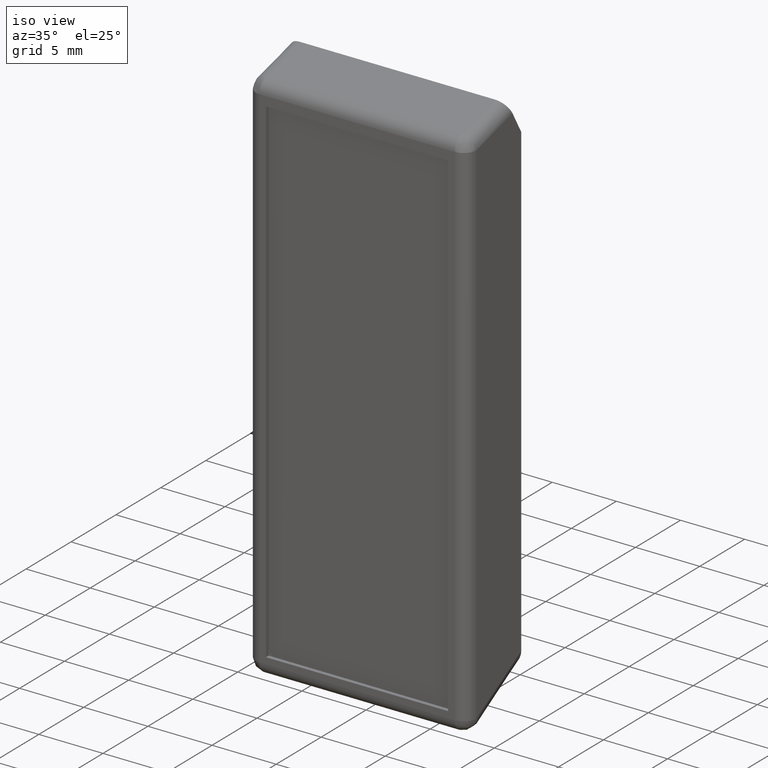
[diagram: clean part render]
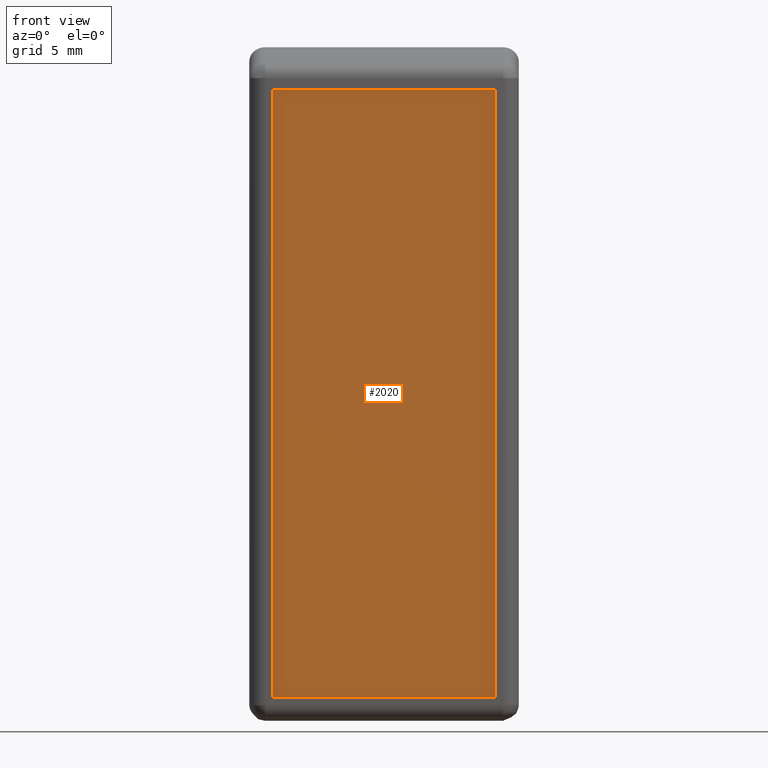
[diagram: tour spotlight — one face highlighted and labeled with its STEP entity id]
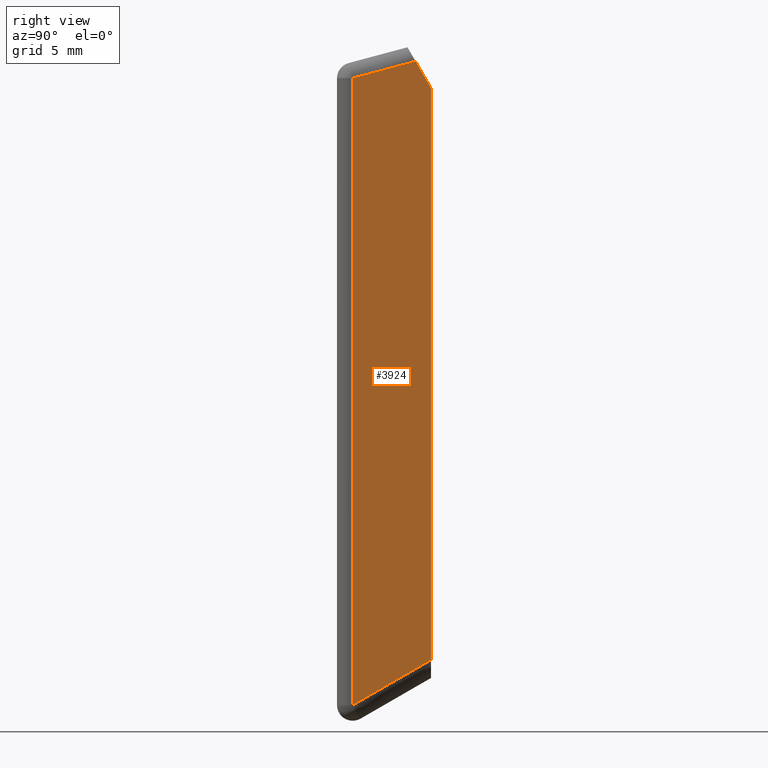
[diagram: tour spotlight — one face highlighted and labeled with its STEP entity id]
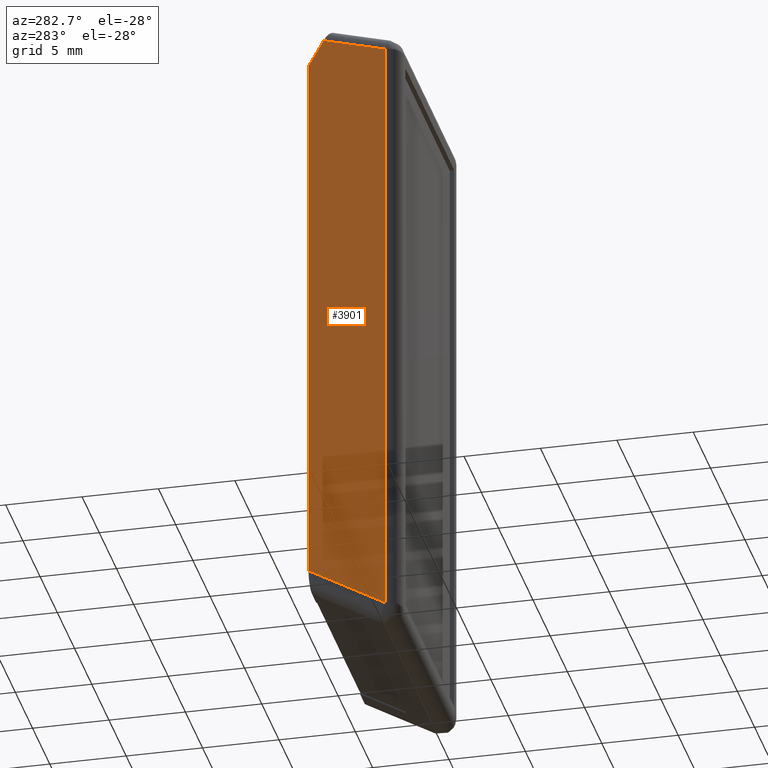
[diagram: tour spotlight — one face highlighted and labeled with its STEP entity id]
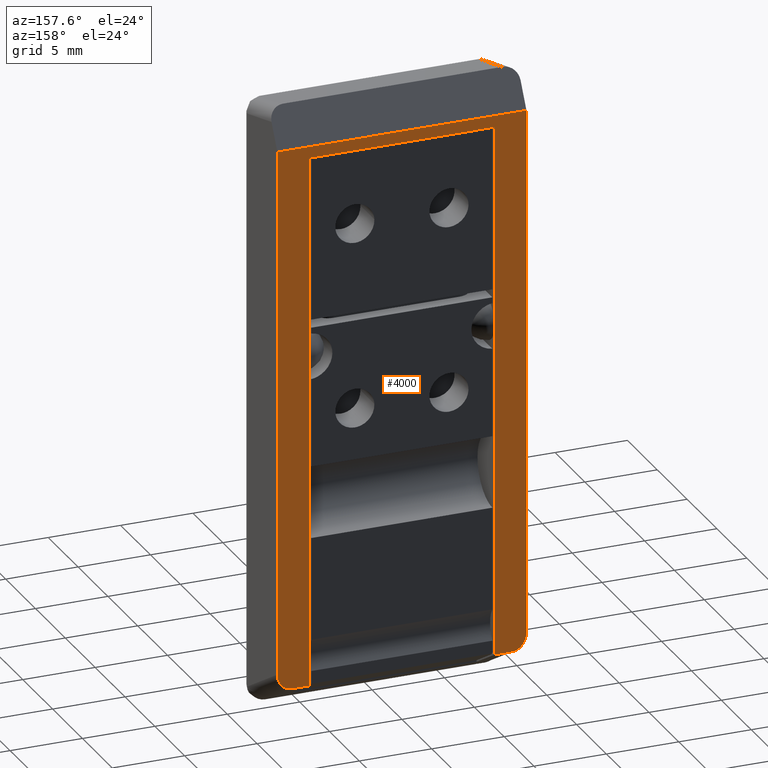
[diagram: tour spotlight — one face highlighted and labeled with its STEP entity id]
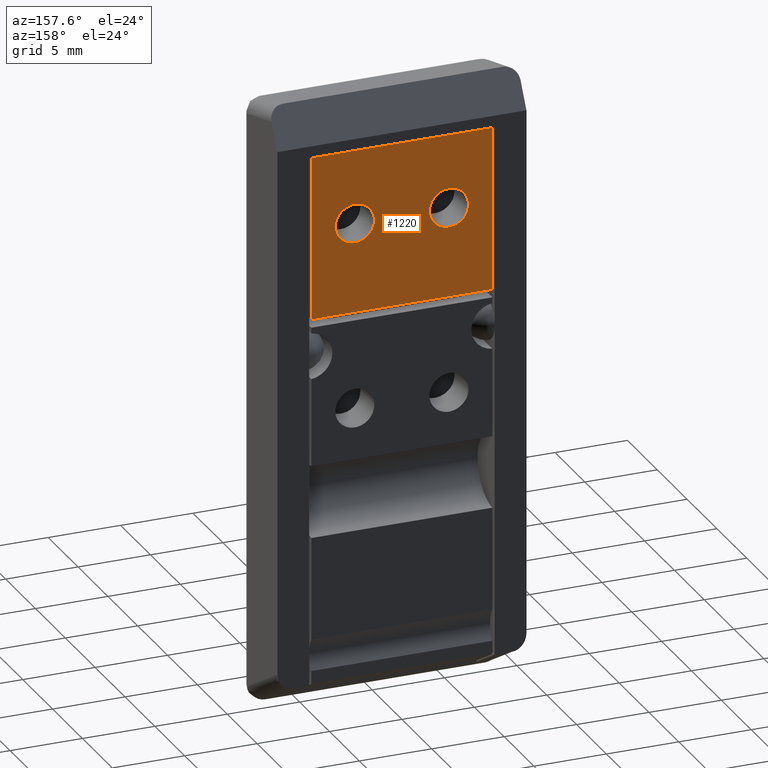
[diagram: tour spotlight — one face highlighted and labeled with its STEP entity id]
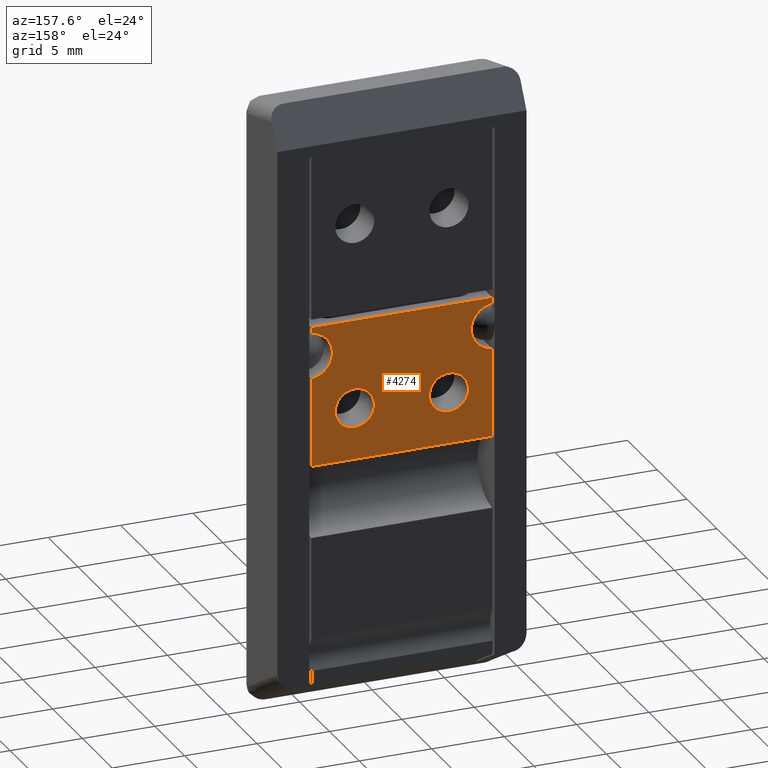
[diagram: tour spotlight — one face highlighted and labeled with its STEP entity id]
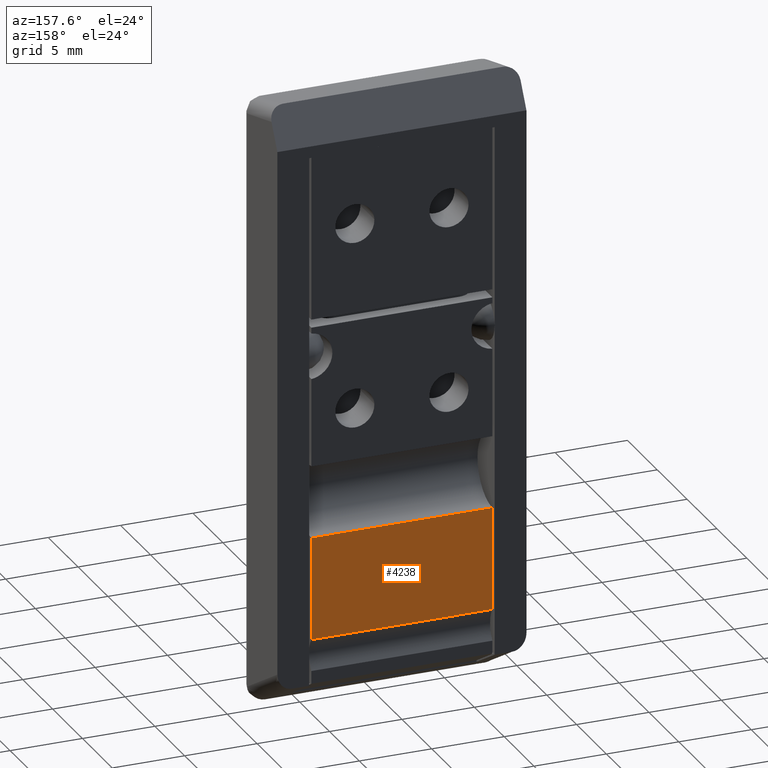
[diagram: tour spotlight — one face highlighted and labeled with its STEP entity id]
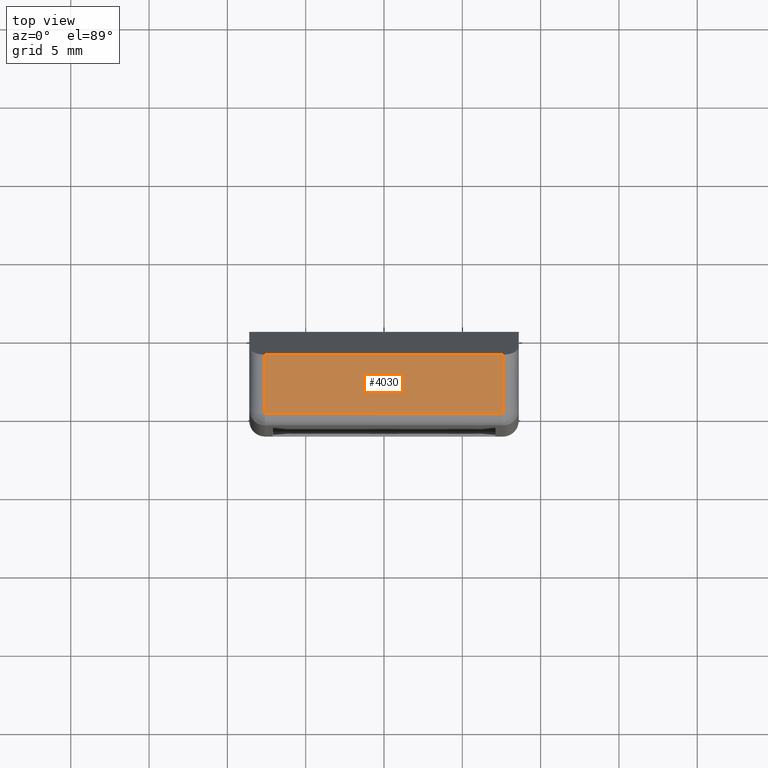
[diagram: tour spotlight — one face highlighted and labeled with its STEP entity id]
A machine part: a face-by-face anatomy tour. The part has 92 B-rep faces; the first image is the clean iso view, then the 8 largest visible faces are spotlighted one at a time (largest first), each with its STEP entity span.

Face 1 — front view, entity #2020. In plain terms, the highlighted face is a freeform B-spline surface patch.
Definition (entity closure, byte-faithful):
#1985=CARTESIAN_POINT('',(-7.809289972477646,-5.700000000000000,42.231759132298762));
#1986=CARTESIAN_POINT('',(7.809290353351326,-5.700000000000000,42.231759132298762));
#1987=CARTESIAN_POINT('',(-7.809289972477646,-5.700000000000000,-0.437761213370985));
#1988=CARTESIAN_POINT('',(7.809290353351326,-5.700000000000000,-0.437761213370985));
#1989=B_SPLINE_SURFACE_WITH_KNOTS('',1,1,((#1985,#1987),(#1986,#1988)),.UNSPECIFIED.,.F.,.F.,.U.,(2,2),(2,2),(0.0,15.618580325828971),(0.0,42.669520345669753),.UNSPECIFIED.);
#1990=CARTESIAN_POINT('',(-7.100000000000001,-5.700000000000000,1.500000000000100));
#1991=VERTEX_POINT('',#1990);
#1992=CARTESIAN_POINT('',(-7.100000000000001,-5.700000000000000,40.293999999999997));
#1993=VERTEX_POINT('',#1992);
#1994=CARTESIAN_POINT('',(-7.100000000000001,-5.700000000000000,1.500000000000100));
#1995=CARTESIAN_POINT('',(-7.100000000000001,-5.700000000000000,40.293999999999997));
#1996=QUASI_UNIFORM_CURVE('',1,(#1994,#1995),.UNSPECIFIED.,.F.,.U.);
#1997=EDGE_CURVE('',#1991,#1993,#1996,.T.);
#1998=ORIENTED_EDGE('',*,*,#1997,.F.);
#1999=CARTESIAN_POINT('',(7.100000000000001,-5.700000000000000,1.500000000000100));
#2000=VERTEX_POINT('',#1999);
#2001=CARTESIAN_POINT('',(7.100000000000001,-5.700000000000000,1.500000000000100));
#2002=CARTESIAN_POINT('',(-7.100000000000001,-5.700000000000000,1.500000000000100));
#2003=QUASI_UNIFORM_CURVE('',1,(#2001,#2002),.UNSPECIFIED.,.F.,.U.);
#2004=EDGE_CURVE('',#2000,#1991,#2003,.T.);
#2005=ORIENTED_EDGE('',*,*,#2004,.F.);
#2006=CARTESIAN_POINT('',(7.100000000000001,-5.700000000000000,40.293999999999997));
#2007=VERTEX_POINT('',#2006);
#2008=CARTESIAN_POINT('',(7.100000000000001,-5.700000000000000,40.293999999999997));
#2009=CARTESIAN_POINT('',(7.100000000000001,-5.700000000000000,1.500000000000100));
#2010=QUASI_UNIFORM_CURVE('',1,(#2008,#2009),.UNSPECIFIED.,.F.,.U.);
#2011=EDGE_CURVE('',#2007,#2000,#2010,.T.);
#2012=ORIENTED_EDGE('',*,*,#2011,.F.);
#2013=CARTESIAN_POINT('',(-7.100000000000001,-5.700000000000000,40.293999999999997));
#2014=CARTESIAN_POINT('',(7.100000000000001,-5.700000000000000,40.293999999999997));
#2015=QUASI_UNIFORM_CURVE('',1,(#2013,#2014),.UNSPECIFIED.,.F.,.U.);
#2016=EDGE_CURVE('',#1993,#2007,#2015,.T.);
#2017=ORIENTED_EDGE('',*,*,#2016,.F.);
#2018=EDGE_LOOP('',(#1998,#2005,#2012,#2017));
#2019=FACE_OUTER_BOUND('',#2018,.T.);
#2020=ADVANCED_FACE('',(#2019),#1989,.F.);

Face 2 — right view, entity #3924. In plain terms, the highlighted face is a freeform B-spline surface patch.
Definition (entity closure, byte-faithful):
#3526=CARTESIAN_POINT('',(8.600000000000000,-5.0,1.000025403877686));
#3527=VERTEX_POINT('',#3526);
#3628=CARTESIAN_POINT('',(8.600000000000000,0.0,3.886692070544245));
#3629=VERTEX_POINT('',#3628);
#3645=CARTESIAN_POINT('',(8.600000000000000,-5.0,1.000025403877686));
#3646=CARTESIAN_POINT('',(8.600000000000000,0.0,3.886692070544245));
#3647=QUASI_UNIFORM_CURVE('',1,(#3645,#3646),.UNSPECIFIED.,.F.,.U.);
#3648=EDGE_CURVE('',#3527,#3629,#3647,.T.);
#3673=CARTESIAN_POINT('',(8.600000000000000,-5.0,41.026854700937548));
#3674=VERTEX_POINT('',#3673);
#3696=CARTESIAN_POINT('',(8.600000000000000,-5.0,41.026854700937548));
#3697=CARTESIAN_POINT('',(8.600000000000000,-5.0,1.000025403877686));
#3698=QUASI_UNIFORM_CURVE('',1,(#3696,#3697),.UNSPECIFIED.,.F.,.U.);
#3699=EDGE_CURVE('',#3674,#3527,#3698,.T.);
#3849=CARTESIAN_POINT('',(8.600000000000000,-0.982350375808582,42.103430850900502));
#3850=VERTEX_POINT('',#3849);
#3851=CARTESIAN_POINT('',(8.600000000000000,-0.982350375808582,42.103430850900502));
#3852=CARTESIAN_POINT('',(8.600000000000000,-5.0,41.026854700937548));
#3853=QUASI_UNIFORM_CURVE('',1,(#3851,#3852),.UNSPECIFIED.,.F.,.U.);
#3854=EDGE_CURVE('',#3850,#3674,#3853,.T.);
#3902=CARTESIAN_POINT('',(8.600000000000000,-5.249749990309030,44.156547030860999));
#3903=CARTESIAN_POINT('',(8.600000000000000,0.249750124419480,44.156547030860999));
#3904=CARTESIAN_POINT('',(8.600000000000000,-5.249749990309030,-1.053090776082814));
#3905=CARTESIAN_POINT('',(8.600000000000000,0.249750124419480,-1.053090776082814));
#3906=B_SPLINE_SURFACE_WITH_KNOTS('',1,1,((#3902,#3904),(#3903,#3905)),.UNSPECIFIED.,.F.,.F.,.U.,(2,2),(2,2),(0.0,5.499500114728510),(0.0,45.209637806943810),.UNSPECIFIED.);
#3907=ORIENTED_EDGE('',*,*,#3699,.T.);
#3908=ORIENTED_EDGE('',*,*,#3648,.T.);
#3909=CARTESIAN_POINT('',(8.600000000000000,0.0,40.402000000000001));
#3910=VERTEX_POINT('',#3909);
#3911=CARTESIAN_POINT('',(8.600000000000000,0.0,40.402000000000001));
#3912=CARTESIAN_POINT('',(8.600000000000000,0.0,3.886692070544245));
#3913=QUASI_UNIFORM_CURVE('',1,(#3911,#3912),.UNSPECIFIED.,.F.,.U.);
#3914=EDGE_CURVE('',#3910,#3629,#3913,.T.);
#3915=ORIENTED_EDGE('',*,*,#3914,.F.);
#3916=CARTESIAN_POINT('',(8.600000000000000,-0.982350375808582,42.103430850900502));
#3917=CARTESIAN_POINT('',(8.600000000000000,0.0,40.402000000000001));
#3918=QUASI_UNIFORM_CURVE('',1,(#3916,#3917),.UNSPECIFIED.,.F.,.U.);
#3919=EDGE_CURVE('',#3850,#3910,#3918,.T.);
#3920=ORIENTED_EDGE('',*,*,#3919,.F.);
#3921=ORIENTED_EDGE('',*,*,#3854,.T.);
#3922=EDGE_LOOP('',(#3907,#3908,#3915,#3920,#3921));
#3923=FACE_OUTER_BOUND('',#3922,.T.);
#3924=ADVANCED_FACE('',(#3923),#3906,.F.);

Face 3 — auxiliary view, entity #3901. In plain terms, the highlighted face is a freeform B-spline surface patch.
Definition (entity closure, byte-faithful):
#3307=CARTESIAN_POINT('',(-8.600000000000000,0.0,3.886692070544245));
#3308=VERTEX_POINT('',#3307);
#3329=CARTESIAN_POINT('',(-8.600000000000000,-5.0,1.000025403877686));
#3330=VERTEX_POINT('',#3329);
#3344=CARTESIAN_POINT('',(-8.600000000000000,0.0,3.886692070544245));
#3345=CARTESIAN_POINT('',(-8.600000000000000,-5.0,1.000025403877686));
#3346=QUASI_UNIFORM_CURVE('',1,(#3344,#3345),.UNSPECIFIED.,.F.,.U.);
#3347=EDGE_CURVE('',#3308,#3330,#3346,.T.);
#3473=CARTESIAN_POINT('',(-8.600000000000000,-5.0,41.026854700937548));
#3474=VERTEX_POINT('',#3473);
#3488=CARTESIAN_POINT('',(-8.600000000000000,-5.0,1.000025403877686));
#3489=CARTESIAN_POINT('',(-8.600000000000000,-5.0,41.026854700937548));
#3490=QUASI_UNIFORM_CURVE('',1,(#3488,#3489),.UNSPECIFIED.,.F.,.U.);
#3491=EDGE_CURVE('',#3330,#3474,#3490,.T.);
#3761=CARTESIAN_POINT('',(-8.600000000000000,-0.982350375808586,42.103430850900502));
#3762=VERTEX_POINT('',#3761);
#3778=CARTESIAN_POINT('',(-8.600000000000000,-5.0,41.026854700937548));
#3779=CARTESIAN_POINT('',(-8.600000000000000,-0.982350375808586,42.103430850900502));
#3780=QUASI_UNIFORM_CURVE('',1,(#3778,#3779),.UNSPECIFIED.,.F.,.U.);
#3781=EDGE_CURVE('',#3474,#3762,#3780,.T.);
#3879=CARTESIAN_POINT('',(-8.600000000000000,-5.249749990309030,44.156547030860999));
#3880=CARTESIAN_POINT('',(-8.600000000000000,0.249750124419480,44.156547030860999));
#3881=CARTESIAN_POINT('',(-8.600000000000000,-5.249749990309030,-1.053090776082814));
#3882=CARTESIAN_POINT('',(-8.600000000000000,0.249750124419480,-1.053090776082814));
#3883=B_SPLINE_SURFACE_WITH_KNOTS('',1,1,((#3879,#3881),(#3880,#3882)),.UNSPECIFIED.,.F.,.F.,.U.,(2,2),(2,2),(0.0,5.499500114728510),(0.0,45.209637806943810),.UNSPECIFIED.);
#3884=CARTESIAN_POINT('',(-8.600000000000000,0.0,40.402000000000001));
#3885=VERTEX_POINT('',#3884);
#3886=CARTESIAN_POINT('',(-8.600000000000000,0.0,40.402000000000001));
#3887=CARTESIAN_POINT('',(-8.600000000000000,0.0,3.886692070544245));
#3888=QUASI_UNIFORM_CURVE('',1,(#3886,#3887),.UNSPECIFIED.,.F.,.U.);
#3889=EDGE_CURVE('',#3885,#3308,#3888,.T.);
#3890=ORIENTED_EDGE('',*,*,#3889,.T.);
#3891=ORIENTED_EDGE('',*,*,#3347,.T.);
#3892=ORIENTED_EDGE('',*,*,#3491,.T.);
#3893=ORIENTED_EDGE('',*,*,#3781,.T.);
#3894=CARTESIAN_POINT('',(-8.600000000000000,-0.982350375808586,42.103430850900502));
#3895=CARTESIAN_POINT('',(-8.600000000000000,0.0,40.402000000000001));
#3896=QUASI_UNIFORM_CURVE('',1,(#3894,#3895),.UNSPECIFIED.,.F.,.U.);
#3897=EDGE_CURVE('',#3762,#3885,#3896,.T.);
#3898=ORIENTED_EDGE('',*,*,#3897,.T.);
#3899=EDGE_LOOP('',(#3890,#3891,#3892,#3893,#3898));
#3900=FACE_OUTER_BOUND('',#3899,.T.);
#3901=ADVANCED_FACE('',(#3900),#3883,.T.);

Face 4 — auxiliary view, entity #4000. In plain terms, the highlighted face is a freeform B-spline surface patch.
Definition (entity closure, byte-faithful):
#2711=CARTESIAN_POINT('',(6.400000000000000,-1.136868E-013,25.731999999999999));
#2712=VERTEX_POINT('',#2711);
#2793=CARTESIAN_POINT('',(-6.400000000000000,-1.136868E-013,25.731999999999999));
#2794=VERTEX_POINT('',#2793);
#3189=CARTESIAN_POINT('',(-6.400000000000000,-1.136868E-013,39.600000000000001));
#3190=VERTEX_POINT('',#3189);
#3196=CARTESIAN_POINT('',(6.400000000000000,-1.136868E-013,39.600000000000001));
#3197=VERTEX_POINT('',#3196);
#3198=CARTESIAN_POINT('',(6.400000000000000,-1.136868E-013,39.600000000000001));
#3199=CARTESIAN_POINT('',(-6.400000000000000,-1.136868E-013,39.600000000000001));
#3200=QUASI_UNIFORM_CURVE('',1,(#3198,#3199),.UNSPECIFIED.,.F.,.U.);
#3201=EDGE_CURVE('',#3197,#3190,#3200,.T.);
#3305=CARTESIAN_POINT('',(-7.600000000000000,0.0,2.732000000000000));
#3306=VERTEX_POINT('',#3305);
#3307=CARTESIAN_POINT('',(-8.600000000000000,0.0,3.886692070544245));
#3308=VERTEX_POINT('',#3307);
#3309=CARTESIAN_POINT('',(-7.600000000000000,0.0,2.732000000000001));
#3310=CARTESIAN_POINT('',(-8.600000000000000,0.0,2.732000000000001));
#3311=CARTESIAN_POINT('',(-8.600000000000000,0.0,3.886692070544245));
#3319=(BOUNDED_CURVE()B_SPLINE_CURVE(2,(#3309,#3310,#3311),.UNSPECIFIED.,.F.,.U.)CURVE()GEOMETRIC_REPRESENTATION_ITEM()QUASI_UNIFORM_CURVE()RATIONAL_B_SPLINE_CURVE((1.0,0.707106781186547,1.0))REPRESENTATION_ITEM(''));
#3320=EDGE_CURVE('',#3306,#3308,#3319,.T.);
#3628=CARTESIAN_POINT('',(8.600000000000000,0.0,3.886692070544245));
#3629=VERTEX_POINT('',#3628);
#3630=CARTESIAN_POINT('',(7.600000000000000,0.0,2.732000000000000));
#3631=VERTEX_POINT('',#3630);
#3632=CARTESIAN_POINT('',(8.600000000000000,0.0,3.886692070544245));
#3633=CARTESIAN_POINT('',(8.600000000000000,0.0,2.732000000000001));
#3634=CARTESIAN_POINT('',(7.600000000000000,0.0,2.732000000000001));
#3642=(BOUNDED_CURVE()B_SPLINE_CURVE(2,(#3632,#3633,#3634),.UNSPECIFIED.,.F.,.U.)CURVE()GEOMETRIC_REPRESENTATION_ITEM()QUASI_UNIFORM_CURVE()RATIONAL_B_SPLINE_CURVE((1.0,0.707106781186547,1.0))REPRESENTATION_ITEM(''));
#3643=EDGE_CURVE('',#3629,#3631,#3642,.T.);
#3884=CARTESIAN_POINT('',(-8.600000000000000,0.0,40.402000000000001));
#3885=VERTEX_POINT('',#3884);
#3886=CARTESIAN_POINT('',(-8.600000000000000,0.0,40.402000000000001));
#3887=CARTESIAN_POINT('',(-8.600000000000000,0.0,3.886692070544245));
#3888=QUASI_UNIFORM_CURVE('',1,(#3886,#3887),.UNSPECIFIED.,.F.,.U.);
#3889=EDGE_CURVE('',#3885,#3308,#3888,.T.);
#3909=CARTESIAN_POINT('',(8.600000000000000,0.0,40.402000000000001));
#3910=VERTEX_POINT('',#3909);
#3911=CARTESIAN_POINT('',(8.600000000000000,0.0,40.402000000000001));
#3912=CARTESIAN_POINT('',(8.600000000000000,0.0,3.886692070544245));
#3913=QUASI_UNIFORM_CURVE('',1,(#3911,#3912),.UNSPECIFIED.,.F.,.U.);
#3914=EDGE_CURVE('',#3910,#3629,#3913,.T.);
#3930=CARTESIAN_POINT('',(6.400000000000000,0.0,2.732000000000000));
#3931=VERTEX_POINT('',#3930);
#3937=CARTESIAN_POINT('',(7.600000000000000,0.0,2.732000000000000));
#3938=CARTESIAN_POINT('',(6.400000000000000,0.0,2.732000000000000));
#3939=QUASI_UNIFORM_CURVE('',1,(#3937,#3938),.UNSPECIFIED.,.F.,.U.);
#3940=EDGE_CURVE('',#3631,#3931,#3939,.T.);
#3945=CARTESIAN_POINT('',(-6.400000000000000,0.0,2.732000000000000));
#3946=VERTEX_POINT('',#3945);
#3947=CARTESIAN_POINT('',(-6.400000000000000,0.0,2.732000000000000));
#3948=CARTESIAN_POINT('',(-7.600000000000000,0.0,2.732000000000000));
#3949=QUASI_UNIFORM_CURVE('',1,(#3947,#3948),.UNSPECIFIED.,.F.,.U.);
#3950=EDGE_CURVE('',#3946,#3306,#3949,.T.);
#3961=CARTESIAN_POINT('',(-9.459140451046945,0.0,0.850383573011769));
#3962=CARTESIAN_POINT('',(-9.459140451046945,0.0,42.283617437376357));
#3963=CARTESIAN_POINT('',(9.459140451046942,0.0,0.850383573011769));
#3964=CARTESIAN_POINT('',(9.459140451046942,0.0,42.283617437376357));
#3965=B_SPLINE_SURFACE_WITH_KNOTS('',1,1,((#3961,#3963),(#3962,#3964)),.UNSPECIFIED.,.F.,.F.,.U.,(2,2),(2,2),(0.0,41.433233864364588),(0.0,18.918280902093890),.UNSPECIFIED.);
#3966=CARTESIAN_POINT('',(-6.400000000000000,-1.136868E-013,39.600000000000001));
#3967=CARTESIAN_POINT('',(-6.400000000000000,-1.136868E-013,25.731999999999999));
#3968=QUASI_UNIFORM_CURVE('',1,(#3966,#3967),.UNSPECIFIED.,.F.,.U.);
#3969=EDGE_CURVE('',#3190,#2794,#3968,.T.);
#3970=ORIENTED_EDGE('',*,*,#3969,.T.);
#3971=CARTESIAN_POINT('',(-6.400000000000000,-1.136868E-013,25.731999999999999));
#3972=CARTESIAN_POINT('',(-6.400000000000000,0.0,2.732000000000000));
#3973=QUASI_UNIFORM_CURVE('',1,(#3971,#3972),.UNSPECIFIED.,.F.,.U.);
#3974=EDGE_CURVE('',#2794,#3946,#3973,.T.);
#3975=ORIENTED_EDGE('',*,*,#3974,.T.);
#3976=ORIENTED_EDGE('',*,*,#3950,.T.);
#3977=ORIENTED_EDGE('',*,*,#3320,.T.);
#3978=ORIENTED_EDGE('',*,*,#3889,.F.);
#3979=CARTESIAN_POINT('',(8.600000000000000,0.0,40.402000000000001));
#3980=CARTESIAN_POINT('',(-8.600000000000000,0.0,40.402000000000001));
#3981=QUASI_UNIFORM_CURVE('',1,(#3979,#3980),.UNSPECIFIED.,.F.,.U.);
#3982=EDGE_CURVE('',#3910,#3885,#3981,.T.);
#3983=ORIENTED_EDGE('',*,*,#3982,.F.);
#3984=ORIENTED_EDGE('',*,*,#3914,.T.);
#3985=ORIENTED_EDGE('',*,*,#3643,.T.);
#3986=ORIENTED_EDGE('',*,*,#3940,.T.);
#3987=CARTESIAN_POINT('',(6.400000000000000,-1.136868E-013,25.731999999999999));
#3988=CARTESIAN_POINT('',(6.400000000000000,0.0,2.732000000000000));
#3989=QUASI_UNIFORM_CURVE('',1,(#3987,#3988),.UNSPECIFIED.,.F.,.U.);
#3990=EDGE_CURVE('',#2712,#3931,#3989,.T.);
#3991=ORIENTED_EDGE('',*,*,#3990,.F.);
#3992=CARTESIAN_POINT('',(6.400000000000000,-1.136868E-013,39.600000000000001));
#3993=CARTESIAN_POINT('',(6.400000000000000,-1.136868E-013,25.731999999999999));
#3994=QUASI_UNIFORM_CURVE('',1,(#3992,#3993),.UNSPECIFIED.,.F.,.U.);
#3995=EDGE_CURVE('',#3197,#2712,#3994,.T.);
#3996=ORIENTED_EDGE('',*,*,#3995,.F.);
#3997=ORIENTED_EDGE('',*,*,#3201,.T.);
#3998=EDGE_LOOP('',(#3970,#3975,#3976,#3977,#3978,#3983,#3984,#3985,#3986,#3991,#3996,#3997));
#3999=FACE_OUTER_BOUND('',#3998,.T.);
#4000=ADVANCED_FACE('',(#3999),#3965,.T.);

Face 5 — auxiliary view, entity #1220. In plain terms, the highlighted face is a freeform B-spline surface patch.
Definition (entity closure, byte-faithful):
#70=CARTESIAN_POINT('',(-3.250000000000000,0.0,35.850000000000001));
#71=VERTEX_POINT('',#70);
#72=CARTESIAN_POINT('',(-2.479365686137149,8.109384E-017,35.608432566418507));
#73=VERTEX_POINT('',#72);
#74=CARTESIAN_POINT('',(-3.250000000000000,0.0,35.850000000000001));
#75=CARTESIAN_POINT('',(-2.826821289333914,0.0,35.850000000000009));
#76=CARTESIAN_POINT('',(-2.479365686137149,8.109384E-017,35.608432566418522));
#84=(BOUNDED_CURVE()B_SPLINE_CURVE(2,(#74,#75,#76),.UNSPECIFIED.,.F.,.U.)B_SPLINE_CURVE_WITH_KNOTS((3,3),(0.500000000000000,0.598090608939003),.UNSPECIFIED.)CURVE()GEOMETRIC_REPRESENTATION_ITEM()RATIONAL_B_SPLINE_CURVE((1.0,0.885079703249935,0.860340221601189))REPRESENTATION_ITEM(''));
#85=EDGE_CURVE('',#71,#73,#84,.T.);
#158=CARTESIAN_POINT('',(-1.904161599470861,7.979728E-017,34.605919779367071));
#159=VERTEX_POINT('',#158);
#165=CARTESIAN_POINT('',(-3.250000000000000,0.0,33.150000000000013));
#166=VERTEX_POINT('',#165);
#167=CARTESIAN_POINT('',(-1.904161599470861,7.979728E-017,34.605919779367071));
#168=CARTESIAN_POINT('',(-1.900000000000000,0.0,34.553041644595453));
#169=CARTESIAN_POINT('',(-1.900000000000000,0.0,34.500000000000000));
#170=CARTESIAN_POINT('',(-1.900000000000000,0.0,33.150000000000013));
#171=CARTESIAN_POINT('',(-3.250000000000000,0.0,33.150000000000013));
#179=(BOUNDED_CURVE()B_SPLINE_CURVE(2,(#167,#168,#169,#170,#171),.UNSPECIFIED.,.F.,.U.)B_SPLINE_CURVE_WITH_KNOTS((3,2,3),(0.736331300598510,0.750000000000000,1.0),.UNSPECIFIED.)CURVE()GEOMETRIC_REPRESENTATION_ITEM()RATIONAL_B_SPLINE_CURVE((0.969723356100324,0.983986122541217,1.0,0.707106781186548,1.0))REPRESENTATION_ITEM(''));
#180=EDGE_CURVE('',#159,#166,#179,.T.);
#182=CARTESIAN_POINT('',(-3.250000000000000,0.0,33.150000000000013));
#183=CARTESIAN_POINT('',(-4.599999999999999,0.0,33.150000000000013));
#184=CARTESIAN_POINT('',(-4.600000000000000,0.0,34.500000000000000));
#185=CARTESIAN_POINT('',(-4.599999999999999,0.0,35.850000000000001));
#186=CARTESIAN_POINT('',(-3.250000000000000,0.0,35.850000000000001));
#194=(BOUNDED_CURVE()B_SPLINE_CURVE(2,(#182,#183,#184,#185,#186),.UNSPECIFIED.,.F.,.U.)B_SPLINE_CURVE_WITH_KNOTS((3,2,3),(0.0,0.250000000000000,0.500000000000000),.UNSPECIFIED.)CURVE()GEOMETRIC_REPRESENTATION_ITEM()RATIONAL_B_SPLINE_CURVE((1.0,0.707106781186548,1.0,0.707106781186548,1.0))REPRESENTATION_ITEM(''));
#195=EDGE_CURVE('',#166,#71,#194,.T.);
#214=CARTESIAN_POINT('',(-2.479365686137148,8.109384E-017,35.608432566418514));
#215=CARTESIAN_POINT('',(-1.954332779396054,0.0,35.243405061723344));
#216=CARTESIAN_POINT('',(-1.904161599470861,7.979728E-017,34.605919779367071));
#224=(BOUNDED_CURVE()B_SPLINE_CURVE(2,(#214,#215,#216),.UNSPECIFIED.,.F.,.U.)B_SPLINE_CURVE_WITH_KNOTS((3,3),(0.598090608939002,0.736331300598510),.UNSPECIFIED.)CURVE()GEOMETRIC_REPRESENTATION_ITEM()RATIONAL_B_SPLINE_CURVE((0.860340221601189,0.825474467464142,0.969723356100325))REPRESENTATION_ITEM(''));
#225=EDGE_CURVE('',#73,#159,#224,.T.);
#418=CARTESIAN_POINT('',(1.902518022132832,7.979728E-017,34.582415528410522));
#419=VERTEX_POINT('',#418);
#425=CARTESIAN_POINT('',(3.250000000000000,0.0,35.850000000000001));
#426=VERTEX_POINT('',#425);
#427=CARTESIAN_POINT('',(3.250000000000000,0.0,35.850000000000001));
#428=CARTESIAN_POINT('',(1.980046809749951,0.0,35.849999999999987));
#429=CARTESIAN_POINT('',(1.902518022132833,7.979728E-017,34.582415528410522));
#437=(BOUNDED_CURVE()B_SPLINE_CURVE(2,(#427,#428,#429),.UNSPECIFIED.,.F.,.U.)B_SPLINE_CURVE_WITH_KNOTS((3,3),(0.500000000000000,0.739332962232117),.UNSPECIFIED.)CURVE()GEOMETRIC_REPRESENTATION_ITEM()RATIONAL_B_SPLINE_CURVE((1.0,0.719603993294707,0.976072041652089))REPRESENTATION_ITEM(''));
#438=EDGE_CURVE('',#426,#419,#437,.T.);
#440=CARTESIAN_POINT('',(3.724684265438076,7.656506E-017,35.763793831344941));
#441=VERTEX_POINT('',#440);
#442=CARTESIAN_POINT('',(3.724684265438076,7.656506E-017,35.763793831344941));
#443=CARTESIAN_POINT('',(3.495169971200558,0.0,35.850000000000001));
#444=CARTESIAN_POINT('',(3.250000000000000,0.0,35.850000000000001));
#452=(BOUNDED_CURVE()B_SPLINE_CURVE(2,(#442,#443,#444),.UNSPECIFIED.,.F.,.U.)B_SPLINE_CURVE_WITH_KNOTS((3,3),(0.440284170896546,0.500000000000000),.UNSPECIFIED.)CURVE()GEOMETRIC_REPRESENTATION_ITEM()RATIONAL_B_SPLINE_CURVE((0.893499554632874,0.930038554399102,1.0))REPRESENTATION_ITEM(''));
#453=EDGE_CURVE('',#441,#426,#452,.T.);
#503=CARTESIAN_POINT('',(3.250000000000000,0.0,33.150000000000013));
#504=VERTEX_POINT('',#503);
#505=CARTESIAN_POINT('',(3.250000000000000,0.0,33.150000000000013));
#506=CARTESIAN_POINT('',(4.599999999999999,0.0,33.150000000000013));
#507=CARTESIAN_POINT('',(4.600000000000000,0.0,34.500000000000000));
#508=CARTESIAN_POINT('',(4.600000000000000,0.0,35.435022954172524));
#509=CARTESIAN_POINT('',(3.724684265438075,7.656506E-017,35.763793831344934));
#517=(BOUNDED_CURVE()B_SPLINE_CURVE(2,(#505,#506,#507,#508,#509),.UNSPECIFIED.,.F.,.U.)B_SPLINE_CURVE_WITH_KNOTS((3,2,3),(0.0,0.250000000000000,0.440284170896546),.UNSPECIFIED.)CURVE()GEOMETRIC_REPRESENTATION_ITEM()RATIONAL_B_SPLINE_CURVE((1.0,0.707106781186548,1.0,0.777068226787446,0.893499554632874))REPRESENTATION_ITEM(''));
#518=EDGE_CURVE('',#504,#441,#517,.T.);
#520=CARTESIAN_POINT('',(1.902518022132832,7.979728E-017,34.582415528410522));
#521=CARTESIAN_POINT('',(1.900000000000000,0.0,34.541246230491673));
#522=CARTESIAN_POINT('',(1.900000000000000,0.0,34.500000000000000));
#523=CARTESIAN_POINT('',(1.900000000000000,0.0,33.150000000000013));
#524=CARTESIAN_POINT('',(3.250000000000000,0.0,33.150000000000013));
#532=(BOUNDED_CURVE()B_SPLINE_CURVE(2,(#520,#521,#522,#523,#524),.UNSPECIFIED.,.F.,.U.)B_SPLINE_CURVE_WITH_KNOTS((3,2,3),(0.739332962232117,0.750000000000000,1.0),.UNSPECIFIED.)CURVE()GEOMETRIC_REPRESENTATION_ITEM()RATIONAL_B_SPLINE_CURVE((0.976072041652088,0.987502787891840,1.0,0.707106781186548,1.0))REPRESENTATION_ITEM(''));
#533=EDGE_CURVE('',#419,#504,#532,.T.);
#900=CARTESIAN_POINT('',(6.250000000000000,-1.136868E-013,39.500000000000000));
#901=VERTEX_POINT('',#900);
#907=CARTESIAN_POINT('',(6.246662954709610,-1.136244E-013,39.600000000000001));
#908=VERTEX_POINT('',#907);
#909=CARTESIAN_POINT('',(6.246662954709576,-1.136244E-013,39.600000000000001));
#910=CARTESIAN_POINT('',(6.250000000000000,-1.136244E-013,39.550055679356355));
#911=CARTESIAN_POINT('',(6.250000000000000,-1.136244E-013,39.500000000000000));
#919=(BOUNDED_CURVE()B_SPLINE_CURVE(2,(#909,#910,#911),.UNSPECIFIED.,.F.,.U.)CURVE()GEOMETRIC_REPRESENTATION_ITEM()QUASI_UNIFORM_CURVE()RATIONAL_B_SPLINE_CURVE((1.0,0.999443671033970,1.0))REPRESENTATION_ITEM(''));
#920=EDGE_CURVE('',#908,#901,#919,.T.);
#1051=CARTESIAN_POINT('',(-6.246662954709660,-1.136868E-013,39.600000000000001));
#1052=VERTEX_POINT('',#1051);
#1058=CARTESIAN_POINT('',(-6.250000000000000,-1.136868E-013,39.500000000000000));
#1059=VERTEX_POINT('',#1058);
#1060=CARTESIAN_POINT('',(-6.250000000000000,-1.136868E-013,39.500000000000000));
#1061=CARTESIAN_POINT('',(-6.250000000000000,-1.136868E-013,39.550055679356355));
#1062=CARTESIAN_POINT('',(-6.246662954709577,-1.136868E-013,39.599999999999987));
#1070=(BOUNDED_CURVE()B_SPLINE_CURVE(2,(#1060,#1061,#1062),.UNSPECIFIED.,.F.,.U.)CURVE()GEOMETRIC_REPRESENTATION_ITEM()QUASI_UNIFORM_CURVE()RATIONAL_B_SPLINE_CURVE((1.0,0.999443671033970,1.0))REPRESENTATION_ITEM(''));
#1071=EDGE_CURVE('',#1059,#1052,#1070,.T.);
#1094=CARTESIAN_POINT('',(-6.250000000000000,-1.136868E-013,28.300000000000001));
#1095=VERTEX_POINT('',#1094);
#1096=CARTESIAN_POINT('',(-6.250000000000000,-1.136868E-013,39.500000000000000));
#1097=CARTESIAN_POINT('',(-6.250000000000000,-1.136868E-013,28.300000000000001));
#1098=QUASI_UNIFORM_CURVE('',1,(#1096,#1097),.UNSPECIFIED.,.F.,.U.);
#1099=EDGE_CURVE('',#1059,#1095,#1098,.T.);
#1114=CARTESIAN_POINT('',(6.250000000000000,-1.136868E-013,28.300000000000001));
#1115=VERTEX_POINT('',#1114);
#1116=CARTESIAN_POINT('',(6.250000000000000,-1.136868E-013,39.500000000000000));
#1117=CARTESIAN_POINT('',(6.250000000000000,-1.136868E-013,28.300000000000001));
#1118=QUASI_UNIFORM_CURVE('',1,(#1116,#1117),.UNSPECIFIED.,.F.,.U.);
#1119=EDGE_CURVE('',#901,#1115,#1118,.T.);
#1187=CARTESIAN_POINT('',(-6.874374975772575,-1.136868E-013,27.735564254034141));
#1188=CARTESIAN_POINT('',(-6.874374975772575,-1.136868E-013,40.164433624338542));
#1189=CARTESIAN_POINT('',(6.874375311048702,-1.136868E-013,27.735564254034141));
#1190=CARTESIAN_POINT('',(6.874375311048702,-1.136868E-013,40.164433624338542));
#1191=B_SPLINE_SURFACE_WITH_KNOTS('',1,1,((#1187,#1189),(#1188,#1190)),.UNSPECIFIED.,.F.,.F.,.U.,(2,2),(2,2),(0.0,12.428869370304399),(0.0,13.748750286821281),.UNSPECIFIED.);
#1192=ORIENTED_EDGE('',*,*,#1099,.F.);
#1193=ORIENTED_EDGE('',*,*,#1071,.T.);
#1194=CARTESIAN_POINT('',(6.246662954709610,-1.136244E-013,39.600000000000001));
#1195=CARTESIAN_POINT('',(-6.246662954709660,-1.136868E-013,39.600000000000001));
#1196=QUASI_UNIFORM_CURVE('',1,(#1194,#1195),.UNSPECIFIED.,.F.,.U.);
#1197=EDGE_CURVE('',#908,#1052,#1196,.T.);
#1198=ORIENTED_EDGE('',*,*,#1197,.F.);
#1199=ORIENTED_EDGE('',*,*,#920,.T.);
#1200=ORIENTED_EDGE('',*,*,#1119,.T.);
#1201=CARTESIAN_POINT('',(6.250000000000000,-1.136868E-013,28.300000000000001));
#1202=CARTESIAN_POINT('',(-6.250000000000000,-1.136868E-013,28.300000000000001));
#1203=QUASI_UNIFORM_CURVE('',1,(#1201,#1202),.UNSPECIFIED.,.F.,.U.);
#1204=EDGE_CURVE('',#1115,#1095,#1203,.T.);
#1205=ORIENTED_EDGE('',*,*,#1204,.T.);
#1206=EDGE_LOOP('',(#1192,#1193,#1198,#1199,#1200,#1205));
#1207=FACE_OUTER_BOUND('',#1206,.T.);
#1208=ORIENTED_EDGE('',*,*,#195,.F.);
#1209=ORIENTED_EDGE('',*,*,#180,.F.);
#1210=ORIENTED_EDGE('',*,*,#225,.F.);
#1211=ORIENTED_EDGE('',*,*,#85,.F.);
#1212=EDGE_LOOP('',(#1208,#1209,#1210,#1211));
#1213=FACE_BOUND('',#1212,.T.);
#1214=ORIENTED_EDGE('',*,*,#438,.T.);
#1215=ORIENTED_EDGE('',*,*,#533,.T.);
#1216=ORIENTED_EDGE('',*,*,#518,.T.);
#1217=ORIENTED_EDGE('',*,*,#453,.T.);
#1218=EDGE_LOOP('',(#1214,#1215,#1216,#1217));
#1219=FACE_BOUND('',#1218,.T.);
#1220=ADVANCED_FACE('',(#1207,#1213,#1219),#1191,.T.);

Face 6 — auxiliary view, entity #4274. In plain terms, the highlighted face is a freeform B-spline surface patch.
Definition (entity closure, byte-faithful):
#1359=CARTESIAN_POINT('',(-3.250000000000000,-1.421085E-014,22.949999999999999));
#1360=VERTEX_POINT('',#1359);
#1361=CARTESIAN_POINT('',(-2.479365686137150,-1.412815E-014,22.708432566418519));
#1362=VERTEX_POINT('',#1361);
#1363=CARTESIAN_POINT('',(-3.250000000000000,-1.421085E-014,22.949999999999999));
#1364=CARTESIAN_POINT('',(-2.826821289333925,-1.421085E-014,22.950000000000003));
#1365=CARTESIAN_POINT('',(-2.479365686137149,-1.412815E-014,22.708432566418516));
#1373=(BOUNDED_CURVE()B_SPLINE_CURVE(2,(#1363,#1364,#1365),.UNSPECIFIED.,.F.,.U.)B_SPLINE_CURVE_WITH_KNOTS((3,3),(0.500000000000000,0.598090608939001),.UNSPECIFIED.)CURVE()GEOMETRIC_REPRESENTATION_ITEM()RATIONAL_B_SPLINE_CURVE((1.0,0.885079703249938,0.860340221601190))REPRESENTATION_ITEM(''));
#1374=EDGE_CURVE('',#1360,#1362,#1373,.T.);
#1447=CARTESIAN_POINT('',(-1.904161599470861,-1.412759E-014,21.705919779367068));
#1448=VERTEX_POINT('',#1447);
#1454=CARTESIAN_POINT('',(-3.250000000000000,-1.421085E-014,20.250000000000000));
#1455=VERTEX_POINT('',#1454);
#1456=CARTESIAN_POINT('',(-1.904161599470861,-1.412759E-014,21.705919779367065));
#1457=CARTESIAN_POINT('',(-1.900000000000000,-1.421085E-014,21.653041644595454));
#1458=CARTESIAN_POINT('',(-1.900000000000000,-1.421085E-014,21.600000000000001));
#1459=CARTESIAN_POINT('',(-1.900000000000000,-1.421085E-014,20.250000000000000));
#1460=CARTESIAN_POINT('',(-3.250000000000000,-1.421085E-014,20.250000000000000));
#1468=(BOUNDED_CURVE()B_SPLINE_CURVE(2,(#1456,#1457,#1458,#1459,#1460),.UNSPECIFIED.,.F.,.U.)B_SPLINE_CURVE_WITH_KNOTS((3,2,3),(0.736331300598510,0.750000000000000,1.0),.UNSPECIFIED.)CURVE()GEOMETRIC_REPRESENTATION_ITEM()RATIONAL_B_SPLINE_CURVE((0.969723356100324,0.983986122541216,1.0,0.707106781186548,1.0))REPRESENTATION_ITEM(''));
#1469=EDGE_CURVE('',#1448,#1455,#1468,.T.);
#1471=CARTESIAN_POINT('',(-3.250000000000000,-1.421085E-014,20.250000000000000));
#1472=CARTESIAN_POINT('',(-4.599999999999999,-1.421085E-014,20.250000000000000));
#1473=CARTESIAN_POINT('',(-4.600000000000000,-1.421085E-014,21.600000000000001));
#1474=CARTESIAN_POINT('',(-4.599999999999999,-1.421085E-014,22.950000000000006));
#1475=CARTESIAN_POINT('',(-3.250000000000000,-1.421085E-014,22.949999999999999));
#1483=(BOUNDED_CURVE()B_SPLINE_CURVE(2,(#1471,#1472,#1473,#1474,#1475),.UNSPECIFIED.,.F.,.U.)B_SPLINE_CURVE_WITH_KNOTS((3,2,3),(0.0,0.250000000000000,0.500000000000000),.UNSPECIFIED.)CURVE()GEOMETRIC_REPRESENTATION_ITEM()RATIONAL_B_SPLINE_CURVE((1.0,0.707106781186548,1.0,0.707106781186548,1.0))REPRESENTATION_ITEM(''));
#1484=EDGE_CURVE('',#1455,#1360,#1483,.T.);
#1503=CARTESIAN_POINT('',(-2.479365686137150,-1.412815E-014,22.708432566418519));
#1504=CARTESIAN_POINT('',(-1.954332779396055,-1.421085E-014,22.343405061723349));
#1505=CARTESIAN_POINT('',(-1.904161599470861,-1.412759E-014,21.705919779367061));
#1513=(BOUNDED_CURVE()B_SPLINE_CURVE(2,(#1503,#1504,#1505),.UNSPECIFIED.,.F.,.U.)B_SPLINE_CURVE_WITH_KNOTS((3,3),(0.598090608939002,0.736331300598510),.UNSPECIFIED.)CURVE()GEOMETRIC_REPRESENTATION_ITEM()RATIONAL_B_SPLINE_CURVE((0.860340221601189,0.825474467464142,0.969723356100324))REPRESENTATION_ITEM(''));
#1514=EDGE_CURVE('',#1362,#1448,#1513,.T.);
#1707=CARTESIAN_POINT('',(1.902518022132832,-1.412759E-014,21.682415528410520));
#1708=VERTEX_POINT('',#1707);
#1714=CARTESIAN_POINT('',(3.250000000000000,-1.421085E-014,22.949999999999999));
#1715=VERTEX_POINT('',#1714);
#1716=CARTESIAN_POINT('',(3.250000000000000,-1.421085E-014,22.949999999999999));
#1717=CARTESIAN_POINT('',(1.980046809749951,-1.421085E-014,22.950000000000003));
#1718=CARTESIAN_POINT('',(1.902518022132833,-1.412759E-014,21.682415528410527));
#1726=(BOUNDED_CURVE()B_SPLINE_CURVE(2,(#1716,#1717,#1718),.UNSPECIFIED.,.F.,.U.)B_SPLINE_CURVE_WITH_KNOTS((3,3),(0.500000000000000,0.739332962232117),.UNSPECIFIED.)CURVE()GEOMETRIC_REPRESENTATION_ITEM()RATIONAL_B_SPLINE_CURVE((1.0,0.719603993294707,0.976072041652089))REPRESENTATION_ITEM(''));
#1727=EDGE_CURVE('',#1715,#1708,#1726,.T.);
#1729=CARTESIAN_POINT('',(3.724684265438077,-1.412644E-014,22.863793831344939));
#1730=VERTEX_POINT('',#1729);
#1731=CARTESIAN_POINT('',(3.724684265438077,-1.412644E-014,22.863793831344942));
#1732=CARTESIAN_POINT('',(3.495169971200559,-1.421085E-014,22.949999999999999));
#1733=CARTESIAN_POINT('',(3.250000000000000,-1.421085E-014,22.949999999999999));
#1741=(BOUNDED_CURVE()B_SPLINE_CURVE(2,(#1731,#1732,#1733),.UNSPECIFIED.,.F.,.U.)B_SPLINE_CURVE_WITH_KNOTS((3,3),(0.440284170896546,0.500000000000000),.UNSPECIFIED.)CURVE()GEOMETRIC_REPRESENTATION_ITEM()RATIONAL_B_SPLINE_CURVE((0.893499554632874,0.930038554399101,1.0))REPRESENTATION_ITEM(''));
#1742=EDGE_CURVE('',#1730,#1715,#1741,.T.);
#1792=CARTESIAN_POINT('',(3.250000000000000,-1.421085E-014,20.250000000000000));
#1793=VERTEX_POINT('',#1792);
#1794=CARTESIAN_POINT('',(3.250000000000000,-1.421085E-014,20.250000000000000));
#1795=CARTESIAN_POINT('',(4.599999999999999,-1.421085E-014,20.250000000000000));
#1796=CARTESIAN_POINT('',(4.600000000000000,-1.421085E-014,21.600000000000001));
#1797=CARTESIAN_POINT('',(4.600000000000000,-1.421085E-014,22.535022954172518));
#1798=CARTESIAN_POINT('',(3.724684265438076,-1.412644E-014,22.863793831344935));
#1806=(BOUNDED_CURVE()B_SPLINE_CURVE(2,(#1794,#1795,#1796,#1797,#1798),.UNSPECIFIED.,.F.,.U.)B_SPLINE_CURVE_WITH_KNOTS((3,2,3),(0.0,0.250000000000000,0.440284170896546),.UNSPECIFIED.)CURVE()GEOMETRIC_REPRESENTATION_ITEM()RATIONAL_B_SPLINE_CURVE((1.0,0.707106781186548,1.0,0.777068226787446,0.893499554632874))REPRESENTATION_ITEM(''));
#1807=EDGE_CURVE('',#1793,#1730,#1806,.T.);
#1809=CARTESIAN_POINT('',(1.902518022132832,-1.412759E-014,21.682415528410527));
#1810=CARTESIAN_POINT('',(1.900000000000000,-1.421085E-014,21.641246230491671));
#1811=CARTESIAN_POINT('',(1.900000000000000,-1.421085E-014,21.600000000000001));
#1812=CARTESIAN_POINT('',(1.900000000000000,-1.421085E-014,20.250000000000000));
#1813=CARTESIAN_POINT('',(3.250000000000000,-1.421085E-014,20.250000000000000));
#1821=(BOUNDED_CURVE()B_SPLINE_CURVE(2,(#1809,#1810,#1811,#1812,#1813),.UNSPECIFIED.,.F.,.U.)B_SPLINE_CURVE_WITH_KNOTS((3,2,3),(0.739332962232117,0.750000000000000,1.0),.UNSPECIFIED.)CURVE()GEOMETRIC_REPRESENTATION_ITEM()RATIONAL_B_SPLINE_CURVE((0.976072041652088,0.987502787891840,1.0,0.707106781186548,1.0))REPRESENTATION_ITEM(''));
#1822=EDGE_CURVE('',#1708,#1793,#1821,.T.);
#2136=CARTESIAN_POINT('',(-6.250000000000000,-1.972152E-031,18.032000000000000));
#2137=VERTEX_POINT('',#2136);
#2153=CARTESIAN_POINT('',(6.250000000000000,-1.972152E-031,18.032000000000000));
#2154=VERTEX_POINT('',#2153);
#2155=CARTESIAN_POINT('',(6.250000000000000,-1.972152E-031,18.032000000000000));
#2156=CARTESIAN_POINT('',(-6.250000000000000,-1.972152E-031,18.032000000000000));
#2157=QUASI_UNIFORM_CURVE('',1,(#2155,#2156),.UNSPECIFIED.,.F.,.U.);
#2158=EDGE_CURVE('',#2154,#2137,#2157,.T.);
#2931=CARTESIAN_POINT('',(-6.250000000000000,0.0,27.324953232207399));
#2932=VERTEX_POINT('',#2931);
#2933=CARTESIAN_POINT('',(-6.250000000000000,0.0,27.731999999999999));
#2934=VERTEX_POINT('',#2933);
#2935=CARTESIAN_POINT('',(-6.250000000000000,0.0,27.324953232207399));
#2936=CARTESIAN_POINT('',(-6.250000000000000,0.0,27.731999999999999));
#2937=QUASI_UNIFORM_CURVE('',1,(#2935,#2936),.UNSPECIFIED.,.F.,.U.);
#2938=EDGE_CURVE('',#2932,#2934,#2937,.T.);
#2980=CARTESIAN_POINT('',(-6.250000000000000,0.0,24.139046767792600));
#2981=VERTEX_POINT('',#2980);
#2982=CARTESIAN_POINT('',(-6.250000000000000,0.0,24.139046767792600));
#2983=CARTESIAN_POINT('',(-4.800000000000002,0.0,24.275585616267520));
#2984=CARTESIAN_POINT('',(-4.800000000000001,0.0,25.731999999999999));
#2985=CARTESIAN_POINT('',(-4.800000000000002,0.0,27.188414383732475));
#2986=CARTESIAN_POINT('',(-6.250000000000000,0.0,27.324953232207399));
#2994=(BOUNDED_CURVE()B_SPLINE_CURVE(2,(#2982,#2983,#2984,#2985,#2986),.UNSPECIFIED.,.F.,.U.)B_SPLINE_CURVE_WITH_KNOTS((3,2,3),(0.0,0.500000000000000,1.0),.UNSPECIFIED.)CURVE()GEOMETRIC_REPRESENTATION_ITEM()RATIONAL_B_SPLINE_CURVE((1.0,0.739509972887452,1.0,0.739509972887452,1.0))REPRESENTATION_ITEM(''));
#2995=EDGE_CURVE('',#2981,#2932,#2994,.T.);
#3041=CARTESIAN_POINT('',(6.250000000000000,0.0,27.324953232207399));
#3042=VERTEX_POINT('',#3041);
#3043=CARTESIAN_POINT('',(6.250000000000000,0.0,24.139046767792600));
#3044=VERTEX_POINT('',#3043);
#3045=CARTESIAN_POINT('',(6.250000000000001,0.0,27.324953232207399));
#3046=CARTESIAN_POINT('',(4.800000000000001,0.0,27.188414383732479));
#3047=CARTESIAN_POINT('',(4.800000000000001,0.0,25.731999999999999));
#3048=CARTESIAN_POINT('',(4.800000000000001,0.0,24.275585616267524));
#3049=CARTESIAN_POINT('',(6.249999999999999,0.0,24.139046767792600));
#3057=(BOUNDED_CURVE()B_SPLINE_CURVE(2,(#3045,#3046,#3047,#3048,#3049),.UNSPECIFIED.,.F.,.U.)B_SPLINE_CURVE_WITH_KNOTS((3,2,3),(0.0,0.500000000000000,1.0),.UNSPECIFIED.)CURVE()GEOMETRIC_REPRESENTATION_ITEM()RATIONAL_B_SPLINE_CURVE((1.0,0.739509972887452,1.0,0.739509972887452,1.0))REPRESENTATION_ITEM(''));
#3058=EDGE_CURVE('',#3042,#3044,#3057,.T.);
#3097=CARTESIAN_POINT('',(6.250000000000000,0.0,27.731999999999999));
#3098=VERTEX_POINT('',#3097);
#3099=CARTESIAN_POINT('',(6.250000000000000,0.0,27.731999999999999));
#3100=CARTESIAN_POINT('',(6.250000000000000,0.0,27.324953232207399));
#3101=QUASI_UNIFORM_CURVE('',1,(#3099,#3100),.UNSPECIFIED.,.F.,.U.);
#3102=EDGE_CURVE('',#3098,#3042,#3101,.T.);
#3125=CARTESIAN_POINT('',(-6.250000000000000,0.0,27.731999999999999));
#3126=CARTESIAN_POINT('',(6.250000000000000,0.0,27.731999999999999));
#3127=QUASI_UNIFORM_CURVE('',1,(#3125,#3126),.UNSPECIFIED.,.F.,.U.);
#3128=EDGE_CURVE('',#2934,#3098,#3127,.T.);
#4239=CARTESIAN_POINT('',(-6.874374975772575,0.0,17.547484563517180));
#4240=CARTESIAN_POINT('',(6.874375311048702,0.0,17.547484563517180));
#4241=CARTESIAN_POINT('',(-6.874374975772575,0.0,28.216515263033301));
#4242=CARTESIAN_POINT('',(6.874375311048702,0.0,28.216515263033301));
#4243=B_SPLINE_SURFACE_WITH_KNOTS('',1,1,((#4239,#4241),(#4240,#4242)),.UNSPECIFIED.,.F.,.F.,.U.,(2,2),(2,2),(0.0,13.748750286821281),(0.0,10.669030699516121),.UNSPECIFIED.);
#4244=ORIENTED_EDGE('',*,*,#2158,.T.);
#4245=CARTESIAN_POINT('',(-6.250000000000000,-1.972152E-031,18.032000000000000));
#4246=CARTESIAN_POINT('',(-6.250000000000000,0.0,24.139046767792600));
#4247=QUASI_UNIFORM_CURVE('',1,(#4245,#4246),.UNSPECIFIED.,.F.,.U.);
#4248=EDGE_CURVE('',#2137,#2981,#4247,.T.);
#4249=ORIENTED_EDGE('',*,*,#4248,.T.);
#4250=ORIENTED_EDGE('',*,*,#2995,.T.);
#4251=ORIENTED_EDGE('',*,*,#2938,.T.);
#4252=ORIENTED_EDGE('',*,*,#3128,.T.);
#4253=ORIENTED_EDGE('',*,*,#3102,.T.);
#4254=ORIENTED_EDGE('',*,*,#3058,.T.);
#4255=CARTESIAN_POINT('',(6.250000000000000,0.0,24.139046767792600));
#4256=CARTESIAN_POINT('',(6.250000000000000,-1.972152E-031,18.032000000000000));
#4257=QUASI_UNIFORM_CURVE('',1,(#4255,#4256),.UNSPECIFIED.,.F.,.U.);
#4258=EDGE_CURVE('',#3044,#2154,#4257,.T.);
#4259=ORIENTED_EDGE('',*,*,#4258,.T.);
#4260=EDGE_LOOP('',(#4244,#4249,#4250,#4251,#4252,#4253,#4254,#4259));
#4261=FACE_OUTER_BOUND('',#4260,.T.);
#4262=ORIENTED_EDGE('',*,*,#1484,.F.);
#4263=ORIENTED_EDGE('',*,*,#1469,.F.);
#4264=ORIENTED_EDGE('',*,*,#1514,.F.);
#4265=ORIENTED_EDGE('',*,*,#1374,.F.);
#4266=EDGE_LOOP('',(#4262,#4263,#4264,#4265));
#4267=FACE_BOUND('',#4266,.T.);
#4268=ORIENTED_EDGE('',*,*,#1727,.T.);
#4269=ORIENTED_EDGE('',*,*,#1822,.T.);
#4270=ORIENTED_EDGE('',*,*,#1807,.T.);
#4271=ORIENTED_EDGE('',*,*,#1742,.T.);
#4272=EDGE_LOOP('',(#4268,#4269,#4270,#4271));
#4273=FACE_BOUND('',#4272,.T.);
#4274=ADVANCED_FACE('',(#4261,#4267,#4273),#4243,.F.);

Face 7 — auxiliary view, entity #4238. In plain terms, the highlighted face is a freeform B-spline surface patch.
Definition (entity closure, byte-faithful):
#2127=CARTESIAN_POINT('',(6.250000000000000,0.0,13.032000000000000));
#2128=VERTEX_POINT('',#2127);
#2129=CARTESIAN_POINT('',(-6.250000000000000,-2.412955E-031,13.032000000000000));
#2130=VERTEX_POINT('',#2129);
#2131=CARTESIAN_POINT('',(6.250000000000000,0.0,13.032000000000000));
#2132=CARTESIAN_POINT('',(-6.250000000000000,-2.412955E-031,13.032000000000000));
#2133=QUASI_UNIFORM_CURVE('',1,(#2131,#2132),.UNSPECIFIED.,.F.,.U.);
#2134=EDGE_CURVE('',#2128,#2130,#2133,.T.);
#2201=CARTESIAN_POINT('',(-6.250000000000000,-4.930381E-032,5.927000000000110));
#2202=VERTEX_POINT('',#2201);
#2216=CARTESIAN_POINT('',(6.250000000000000,-4.930381E-032,5.927000000000110));
#2217=VERTEX_POINT('',#2216);
#2218=CARTESIAN_POINT('',(6.250000000000000,-4.930381E-032,5.927000000000110));
#2219=CARTESIAN_POINT('',(-6.250000000000000,-4.930381E-032,5.927000000000110));
#2220=QUASI_UNIFORM_CURVE('',1,(#2218,#2219),.UNSPECIFIED.,.F.,.U.);
#2221=EDGE_CURVE('',#2217,#2202,#2220,.T.);
#4219=CARTESIAN_POINT('',(-6.874374975772575,0.0,5.572105289155034));
#4220=CARTESIAN_POINT('',(6.874375311048702,0.0,5.572105289155034));
#4221=CARTESIAN_POINT('',(-6.874374975772575,0.0,13.386894393226831));
#4222=CARTESIAN_POINT('',(6.874375311048702,0.0,13.386894393226831));
#4223=B_SPLINE_SURFACE_WITH_KNOTS('',1,1,((#4219,#4221),(#4220,#4222)),.UNSPECIFIED.,.F.,.F.,.U.,(2,2),(2,2),(0.0,13.748750286821281),(0.0,7.814789104071793),.UNSPECIFIED.);
#4224=ORIENTED_EDGE('',*,*,#2134,.F.);
#4225=CARTESIAN_POINT('',(6.250000000000000,0.0,13.032000000000000));
#4226=CARTESIAN_POINT('',(6.250000000000000,-4.930381E-032,5.927000000000110));
#4227=QUASI_UNIFORM_CURVE('',1,(#4225,#4226),.UNSPECIFIED.,.F.,.U.);
#4228=EDGE_CURVE('',#2128,#2217,#4227,.T.);
#4229=ORIENTED_EDGE('',*,*,#4228,.T.);
#4230=ORIENTED_EDGE('',*,*,#2221,.T.);
#4231=CARTESIAN_POINT('',(-6.250000000000000,-4.930381E-032,5.927000000000110));
#4232=CARTESIAN_POINT('',(-6.250000000000000,-2.412955E-031,13.032000000000000));
#4233=QUASI_UNIFORM_CURVE('',1,(#4231,#4232),.UNSPECIFIED.,.F.,.U.);
#4234=EDGE_CURVE('',#2202,#2130,#4233,.T.);
#4235=ORIENTED_EDGE('',*,*,#4234,.T.);
#4236=EDGE_LOOP('',(#4224,#4229,#4230,#4235));
#4237=FACE_OUTER_BOUND('',#4236,.T.);
#4238=ADVANCED_FACE('',(#4237),#4223,.F.);

Face 8 — top view, entity #4030. In plain terms, the highlighted face is a freeform B-spline surface patch.
Definition (entity closure, byte-faithful):
#3582=CARTESIAN_POINT('',(-7.600000000000000,-5.258830300683109,41.992777511232603));
#3583=VERTEX_POINT('',#3582);
#3718=CARTESIAN_POINT('',(7.600000000000000,-5.258830300683109,41.992777511232603));
#3719=VERTEX_POINT('',#3718);
#3733=CARTESIAN_POINT('',(-7.600000000000000,-5.258830300683109,41.992777511232603));
#3734=CARTESIAN_POINT('',(7.600000000000000,-5.258830300683109,41.992777511232603));
#3735=QUASI_UNIFORM_CURVE('',1,(#3733,#3734),.UNSPECIFIED.,.F.,.U.);
#3736=EDGE_CURVE('',#3583,#3719,#3735,.T.);
#3763=CARTESIAN_POINT('',(-7.600000000000000,-1.500000000000000,43.0));
#3764=VERTEX_POINT('',#3763);
#3784=CARTESIAN_POINT('',(-7.600000000000000,-1.500000000000000,43.0));
#3785=CARTESIAN_POINT('',(-7.600000000000000,-5.258830300683109,41.992777511232603));
#3786=QUASI_UNIFORM_CURVE('',1,(#3784,#3785),.UNSPECIFIED.,.F.,.U.);
#3787=EDGE_CURVE('',#3764,#3583,#3786,.T.);
#3856=CARTESIAN_POINT('',(7.600000000000000,-1.500000000000000,43.0));
#3857=VERTEX_POINT('',#3856);
#3871=CARTESIAN_POINT('',(7.600000000000000,-5.258830300683109,41.992777511232603));
#3872=CARTESIAN_POINT('',(7.600000000000000,-1.500000000000000,43.0));
#3873=QUASI_UNIFORM_CURVE('',1,(#3871,#3872),.UNSPECIFIED.,.F.,.U.);
#3874=EDGE_CURVE('',#3719,#3857,#3873,.T.);
#4008=CARTESIAN_POINT('',(7.600000000000000,-1.500000000000000,43.0));
#4009=CARTESIAN_POINT('',(-7.600000000000000,-1.500000000000000,43.0));
#4010=QUASI_UNIFORM_CURVE('',1,(#4008,#4009),.UNSPECIFIED.,.F.,.U.);
#4011=EDGE_CURVE('',#3857,#3764,#4010,.T.);
#4019=CARTESIAN_POINT('',(-8.359239970539452,-1.312246460624587,43.050310754164727));
#4020=CARTESIAN_POINT('',(-8.359239970539452,-5.446583403173220,41.942466874136393));
#4021=CARTESIAN_POINT('',(8.359240378235221,-1.312246460624587,43.050310754164727));
#4022=CARTESIAN_POINT('',(8.359240378235221,-5.446583403173220,41.942466874136393));
#4023=B_SPLINE_SURFACE_WITH_KNOTS('',1,1,((#4019,#4021),(#4020,#4022)),.UNSPECIFIED.,.F.,.F.,.U.,(2,2),(2,2),(0.0,4.280193922830908),(0.0,16.718480348774669),.UNSPECIFIED.);
#4024=ORIENTED_EDGE('',*,*,#4011,.T.);
#4025=ORIENTED_EDGE('',*,*,#3787,.T.);
#4026=ORIENTED_EDGE('',*,*,#3736,.T.);
#4027=ORIENTED_EDGE('',*,*,#3874,.T.);
#4028=EDGE_LOOP('',(#4024,#4025,#4026,#4027));
#4029=FACE_OUTER_BOUND('',#4028,.T.);
#4030=ADVANCED_FACE('',(#4029),#4023,.T.);